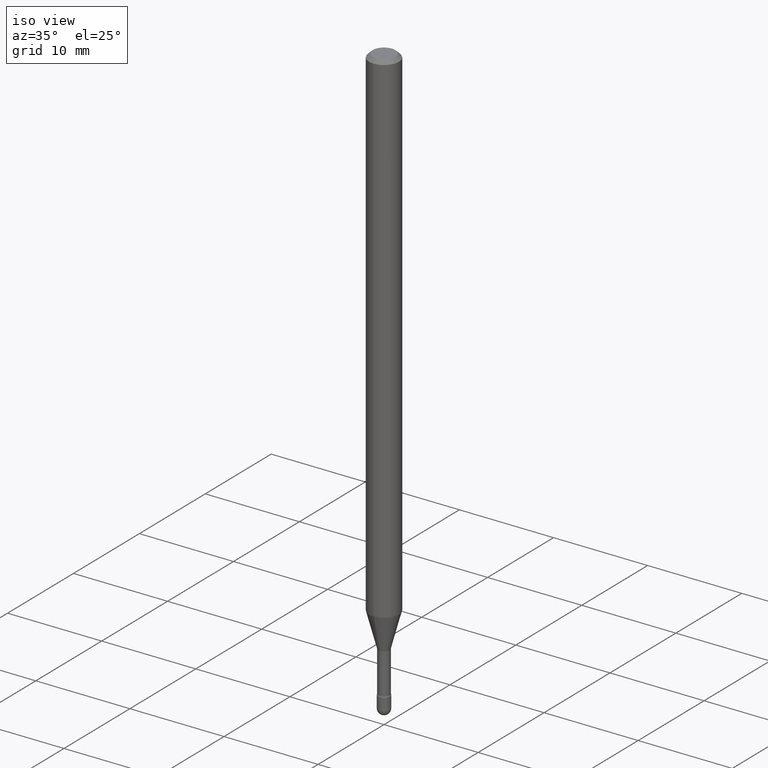
[diagram: clean part render]
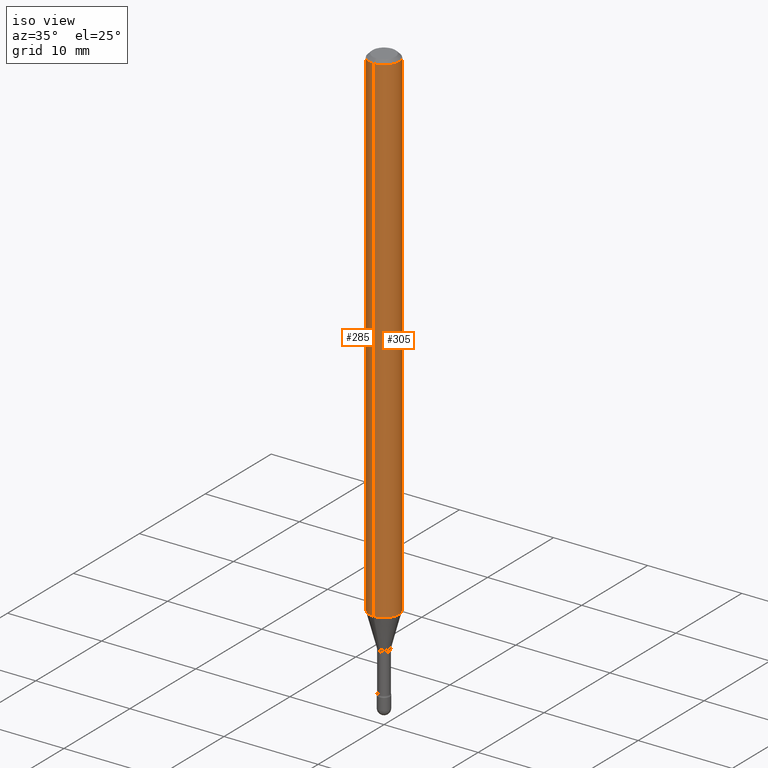
[diagram: same view with one multi-face feature highlighted, each face labeled with its STEP entity id]
A machine part, iso view. The highlighted faces form ONE feature: a constant-radius fillet chain: 2 tangent blend faces with common blend radius 1.5875 mm. The faces share edges in the B-rep.
Their STEP definitions:
[1] entity #285 (Cylinder):
#11 = EDGE_CURVE ( 'NONE', #268, #386, #513, .T. ) ;
#22 = CARTESIAN_POINT ( 'NONE',  ( -4.364351673553912750E-16, -0.06250000000000005551, -0.01499999999999986587 ) ) ;
#45 = ORIENTED_EDGE ( 'NONE', *, *, #11, .T. ) ;
#46 = DIRECTION ( 'NONE',  ( -2.445458957061988148E-29, 3.491495443348071688E-15, 1.000000000000000000 ) ) ;
#108 = DIRECTION ( 'NONE',  ( -2.445458957061988148E-29, 3.491495443348071688E-15, 1.000000000000000000 ) ) ;
#124 = EDGE_CURVE ( 'NONE', #186, #536, #383, .T. ) ;
#127 = CARTESIAN_POINT ( 'NONE',  ( 3.668188435593002173E-31, -5.237243165022135808E-17, -0.01500000000000008271 ) ) ;
#150 = EDGE_CURVE ( 'NONE', #268, #186, #429, .T. ) ;
#168 = AXIS2_PLACEMENT_3D ( 'NONE', #127, #299, #474 ) ;
#170 = CARTESIAN_POINT ( 'NONE',  ( 4.440892098500625669E-16, 0.06250000000000000000, 2.598549336819915827E-16 ) ) ;
#181 = AXIS2_PLACEMENT_3D ( 'NONE', #484, #108, #234 ) ;
#182 = CARTESIAN_POINT ( 'NONE',  ( 4.440892098501137935E-16, 0.06249999999999262396, -2.104450018504814501 ) ) ;
#186 = VERTEX_POINT ( 'NONE', #479 ) ;
#190 = FACE_OUTER_BOUND ( 'NONE', #306, .T. ) ;
#198 = EDGE_CURVE ( 'NONE', #386, #536, #217, .T. ) ;
#215 = DIRECTION ( 'NONE',  ( -2.445458957061988148E-29, 3.491495443348071688E-15, 1.000000000000000000 ) ) ;
#217 = LINE ( 'NONE', #390, #538 ) ;
#234 = DIRECTION ( 'NONE',  ( -6.982962677686265922E-15, -1.000000000000000000, 3.491495443348071688E-15 ) ) ;
#268 = VERTEX_POINT ( 'NONE', #182 ) ;
#269 = AXIS2_PLACEMENT_3D ( 'NONE', #411, #289, #509 ) ;
#285 = ADVANCED_FACE ( 'NONE', ( #190 ), #309, .T. ) ;
#289 = DIRECTION ( 'NONE',  ( -2.445458957061988148E-29, 3.491495443348071688E-15, 1.000000000000000000 ) ) ;
#297 = ORIENTED_EDGE ( 'NONE', *, *, #124, .F. ) ;
#299 = DIRECTION ( 'NONE',  ( -2.445458957061988148E-29, 3.491495443348071688E-15, 1.000000000000000000 ) ) ;
#306 = EDGE_LOOP ( 'NONE', ( #442, #45, #430, #297 ) ) ;
#309 = CYLINDRICAL_SURFACE ( 'NONE', #181, 0.06250000000000000000 ) ;
#315 = VECTOR ( 'NONE', #215, 39.37007874015748143 ) ;
#383 = CIRCLE ( 'NONE', #168, 0.06250000000000000000 ) ;
#386 = VERTEX_POINT ( 'NONE', #485 ) ;
#390 = CARTESIAN_POINT ( 'NONE',  ( -4.364351673553916201E-16, -0.06250000000000000000, 6.962918641005005438E-16 ) ) ;
#411 = CARTESIAN_POINT ( 'NONE',  ( 5.146346147441865393E-29, -7.347677650363324032E-15, -2.104450018504814501 ) ) ;
#429 = LINE ( 'NONE', #170, #315 ) ;
#430 = ORIENTED_EDGE ( 'NONE', *, *, #198, .T. ) ;
#442 = ORIENTED_EDGE ( 'NONE', *, *, #150, .F. ) ;
#474 = DIRECTION ( 'NONE',  ( -6.982962677686265922E-15, -1.000000000000000000, 3.483106191921935554E-15 ) ) ;
#479 = CARTESIAN_POINT ( 'NONE',  ( 4.440892098501143852E-16, 0.06249999999999995143, -0.01500000000000030129 ) ) ;
#484 = CARTESIAN_POINT ( 'NONE',  ( -1.169113584055446105E-44, 1.669184350826100908E-30, 4.780733988912460139E-16 ) ) ;
#485 = CARTESIAN_POINT ( 'NONE',  ( -4.364351673553402948E-16, -0.06250000000000736911, -2.104450018504814057 ) ) ;
#509 = DIRECTION ( 'NONE',  ( -6.982962677686265922E-15, -1.000000000000000000, 4.370956789862821150E-15 ) ) ;
#513 = CIRCLE ( 'NONE', #269, 0.06250000000000000000 ) ;
#536 = VERTEX_POINT ( 'NONE', #22 ) ;
#538 = VECTOR ( 'NONE', #46, 39.37007874015748143 ) ;
[2] entity #305 (Cylinder):
#1 = CARTESIAN_POINT ( 'NONE',  ( 3.668188435593002173E-31, -5.237243165022135808E-17, -0.01500000000000008271 ) ) ;
#10 = CYLINDRICAL_SURFACE ( 'NONE', #340, 0.06250000000000000000 ) ;
#22 = CARTESIAN_POINT ( 'NONE',  ( -4.364351673553912750E-16, -0.06250000000000005551, -0.01499999999999986587 ) ) ;
#46 = DIRECTION ( 'NONE',  ( -2.445458957061988148E-29, 3.491495443348071688E-15, 1.000000000000000000 ) ) ;
#47 = CARTESIAN_POINT ( 'NONE',  ( 5.146346147441865393E-29, -7.347677650363324032E-15, -2.104450018504814501 ) ) ;
#90 = DIRECTION ( 'NONE',  ( -2.445458957061988148E-29, 3.491495443348071688E-15, 1.000000000000000000 ) ) ;
#93 = DIRECTION ( 'NONE',  ( -6.982962677686265922E-15, -1.000000000000000000, 3.483106191921935554E-15 ) ) ;
#123 = DIRECTION ( 'NONE',  ( -2.445458957061988148E-29, 3.491495443348071688E-15, 1.000000000000000000 ) ) ;
#129 = CIRCLE ( 'NONE', #219, 0.06250000000000000000 ) ;
#142 = DIRECTION ( 'NONE',  ( -6.982962677686265922E-15, -1.000000000000000000, 3.491495443348071688E-15 ) ) ;
#150 = EDGE_CURVE ( 'NONE', #268, #186, #429, .T. ) ;
#167 = ORIENTED_EDGE ( 'NONE', *, *, #210, .F. ) ;
#170 = CARTESIAN_POINT ( 'NONE',  ( 4.440892098500625669E-16, 0.06250000000000000000, 2.598549336819915827E-16 ) ) ;
#171 = EDGE_CURVE ( 'NONE', #386, #268, #129, .T. ) ;
#182 = CARTESIAN_POINT ( 'NONE',  ( 4.440892098501137935E-16, 0.06249999999999262396, -2.104450018504814501 ) ) ;
#186 = VERTEX_POINT ( 'NONE', #479 ) ;
#198 = EDGE_CURVE ( 'NONE', #386, #536, #217, .T. ) ;
#207 = ORIENTED_EDGE ( 'NONE', *, *, #150, .T. ) ;
#210 = EDGE_CURVE ( 'NONE', #536, #186, #293, .T. ) ;
#215 = DIRECTION ( 'NONE',  ( -2.445458957061988148E-29, 3.491495443348071688E-15, 1.000000000000000000 ) ) ;
#217 = LINE ( 'NONE', #390, #538 ) ;
#219 = AXIS2_PLACEMENT_3D ( 'NONE', #47, #90, #302 ) ;
#224 = CARTESIAN_POINT ( 'NONE',  ( -1.169113584055446105E-44, 1.669184350826100908E-30, 4.780733988912460139E-16 ) ) ;
#268 = VERTEX_POINT ( 'NONE', #182 ) ;
#293 = CIRCLE ( 'NONE', #500, 0.06250000000000000000 ) ;
#302 = DIRECTION ( 'NONE',  ( -6.982962677686265922E-15, -1.000000000000000000, 4.370956789862821150E-15 ) ) ;
#305 = ADVANCED_FACE ( 'NONE', ( #537 ), #10, .T. ) ;
#315 = VECTOR ( 'NONE', #215, 39.37007874015748143 ) ;
#320 = ORIENTED_EDGE ( 'NONE', *, *, #171, .T. ) ;
#340 = AXIS2_PLACEMENT_3D ( 'NONE', #224, #487, #142 ) ;
#364 = EDGE_LOOP ( 'NONE', ( #320, #207, #167, #557 ) ) ;
#386 = VERTEX_POINT ( 'NONE', #485 ) ;
#390 = CARTESIAN_POINT ( 'NONE',  ( -4.364351673553916201E-16, -0.06250000000000000000, 6.962918641005005438E-16 ) ) ;
#429 = LINE ( 'NONE', #170, #315 ) ;
#479 = CARTESIAN_POINT ( 'NONE',  ( 4.440892098501143852E-16, 0.06249999999999995143, -0.01500000000000030129 ) ) ;
#485 = CARTESIAN_POINT ( 'NONE',  ( -4.364351673553402948E-16, -0.06250000000000736911, -2.104450018504814057 ) ) ;
#487 = DIRECTION ( 'NONE',  ( -2.445458957061988148E-29, 3.491495443348071688E-15, 1.000000000000000000 ) ) ;
#500 = AXIS2_PLACEMENT_3D ( 'NONE', #1, #123, #93 ) ;
#536 = VERTEX_POINT ( 'NONE', #22 ) ;
#537 = FACE_OUTER_BOUND ( 'NONE', #364, .T. ) ;
#538 = VECTOR ( 'NONE', #46, 39.37007874015748143 ) ;
#557 = ORIENTED_EDGE ( 'NONE', *, *, #198, .F. ) ;